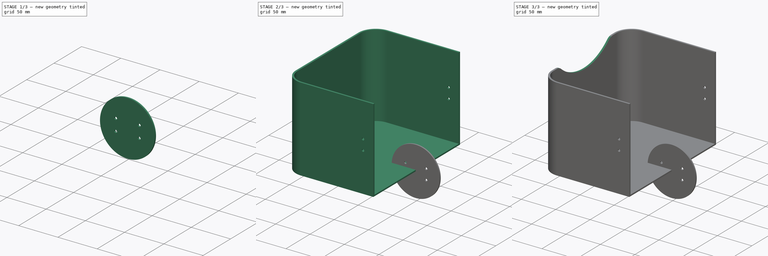
[diagram: build sequence overview — one tinted view per stage of 3, left to right]
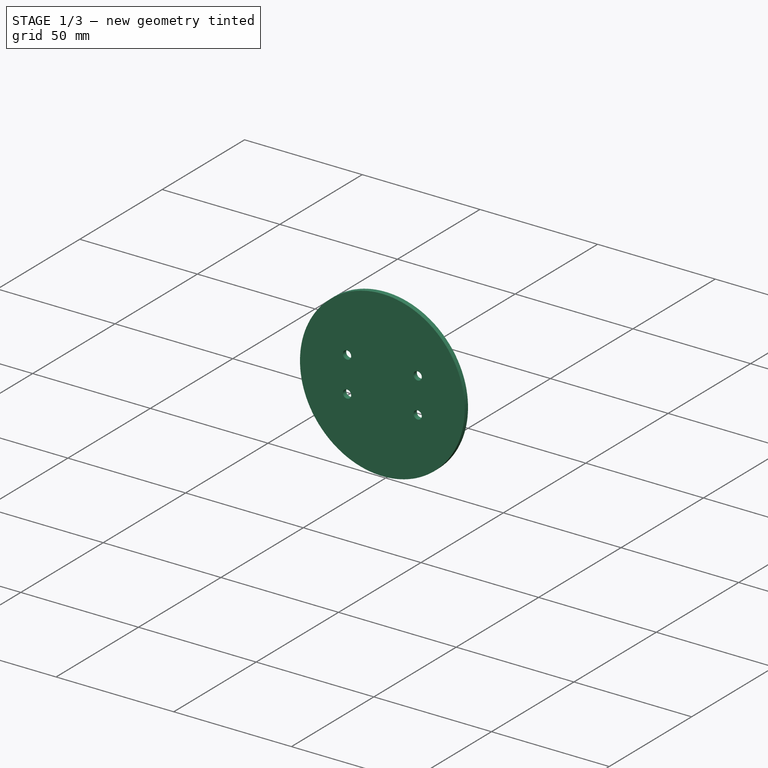
[diagram: stage 1 of 3 — iso view after this stage's code; geometry added in this stage tinted green]
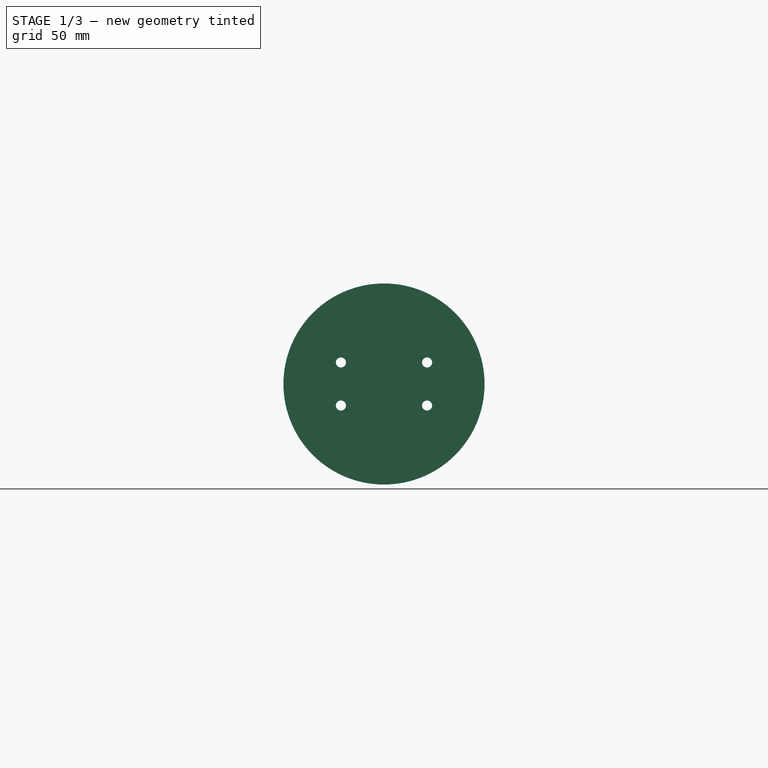
[diagram: stage 1 of 3 — front view after this stage's code; geometry added in this stage tinted green]
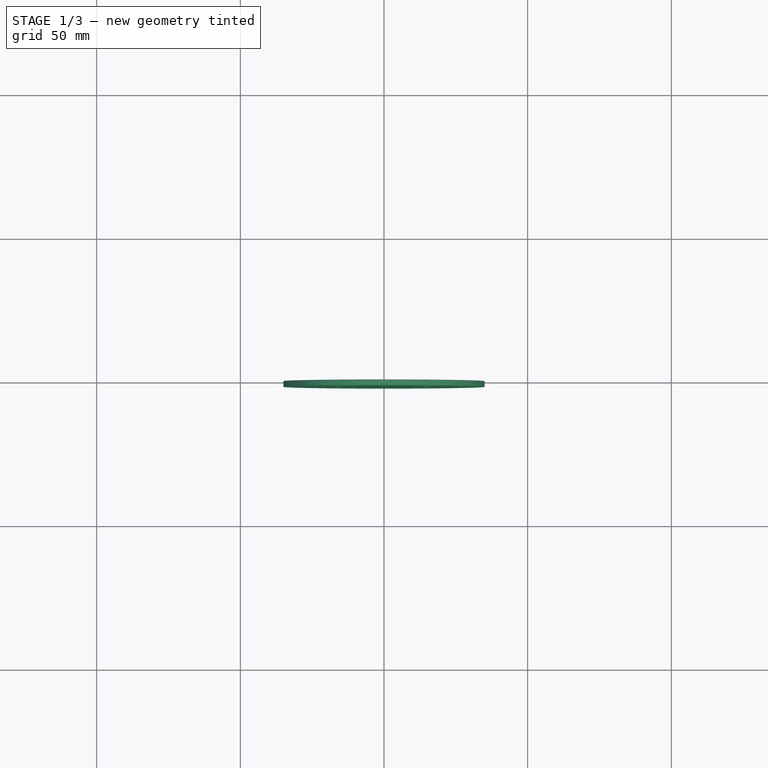
[diagram: stage 1 of 3 — top view after this stage's code; geometry added in this stage tinted green]
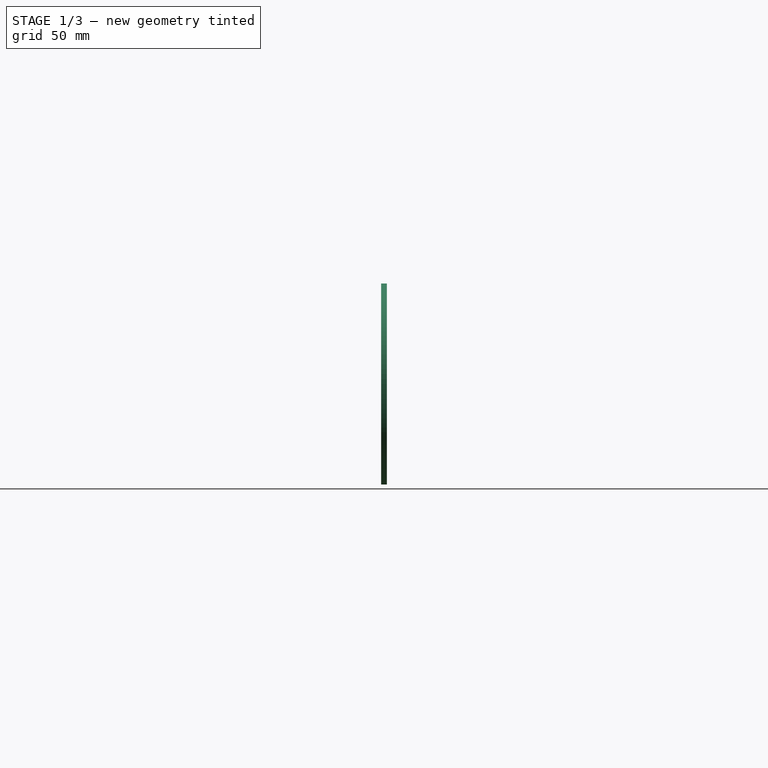
[diagram: stage 1 of 3 — right view after this stage's code; geometry added in this stage tinted green]
FCSTD DOCUMENT  (FreeCAD 0.19R22756 (Git))
Label: box
License: All rights reserved
LicenseURL: http://en.wikipedia.org/wiki/All_rights_reserved
objects: Sketcher::SketchObject×6, PartDesign::Pad×3, PartDesign::Pocket×3, PartDesign::Body×2, PartDesign::Fillet×1
note: 22 computed .brp shape members not serialized (recipe doc carries the construction recipe); baked Part::Feature solids carry a one-line shape summary decoded from their .brp

FEATURE [Sketcher::SketchObject] Sketch002
  MapMode = 5
  Placement = pos=(0,0,0) rot=(1,0,0;1.5708rad)
  Support = -> [XZ_Plane001]
  sketch-geometry (1):
    g0: Circle CenterX=0 CenterY=0 CenterZ=0 NormalX=0 NormalY=0 NormalZ=1 AngleXU=0 Radius=35
  constraints (2):
    c: Diameter(g0) = 70
    c: Coincident(g0,g-1)
FEATURE [PartDesign::Pad] Pad002
  Direction = (1,1,1)
  Length = 2
  Length2 = 100
  Placement = pos=(0,0,0) rot=(1,0,0;1.5708rad)
  Profile = -> Sketch002
  Type = 0
FEATURE [PartDesign::Body] Body
  Group = -> [Sketch,Pad,Sketch001,Pad001,Sketch004,Pocket001,Sketch006,Pocket002,Fillet]
  Origin = -> Origin
  Tip = -> Fillet
FEATURE [Sketcher::SketchObject] Sketch003
  MapMode = 5
  Placement = pos=(0,-2,0) rot=(1,0,0;1.5708rad)
  Support = -> [Pad002]
  expr: Constraints[3] = Constraints[0]
  expr: Constraints[4] = Constraints[0]
  expr: Constraints[5] = Constraints[0]
  expr: Constraints[6] = -Constraints[2]
  expr: Constraints[11] = -Constraints[1]
  sketch-geometry (4):
    g0: Circle CenterX=-15 CenterY=7.5 CenterZ=0 NormalX=0 NormalY=0 NormalZ=1 AngleXU=0 Radius=1.75
    g1: Circle CenterX=-15 CenterY=-7.5 CenterZ=0 NormalX=0 NormalY=0 NormalZ=1 AngleXU=0 Radius=1.75
    g2: Circle CenterX=15 CenterY=-7.5 CenterZ=0 NormalX=0 NormalY=0 NormalZ=1 AngleXU=0 Radius=1.75
    g3: Circle CenterX=15 CenterY=7.5 CenterZ=0 NormalX=0 NormalY=0 NormalZ=1 AngleXU=0 Radius=1.75
  constraints (12):
    c: Diameter(g0) = 3.5
    c: DistanceX(g-2,g0) = -15
    c: DistanceY(g-1,g0) = 7.5
    c: Diameter(g1) = 3.5
    c: Diameter(g3) = 3.5
    c: Diameter(g2) = 3.5
    c: DistanceY(g-1,g1) = -7.5
    c: Horizontal(g2,g1)
    c: Vertical(g3,g2)
    c: Vertical(g1,g0)
    c: Horizontal(g3,g0)
    c: DistanceX(g-2,g3) = 15
FEATURE [PartDesign::Pocket] Pocket
  BaseFeature = -> Pad002
  Length = 5
  Length2 = 100
  Placement = pos=(0,0,0) rot=(1,0,0;1.5708rad)
  Profile = -> Sketch003
  Type = 1
FEATURE [PartDesign::Body] Body001  label="connector"
  Group = -> [Sketch002,Pad002,Sketch003,Pocket]
  Origin = -> Origin001
  Tip = -> Pocket
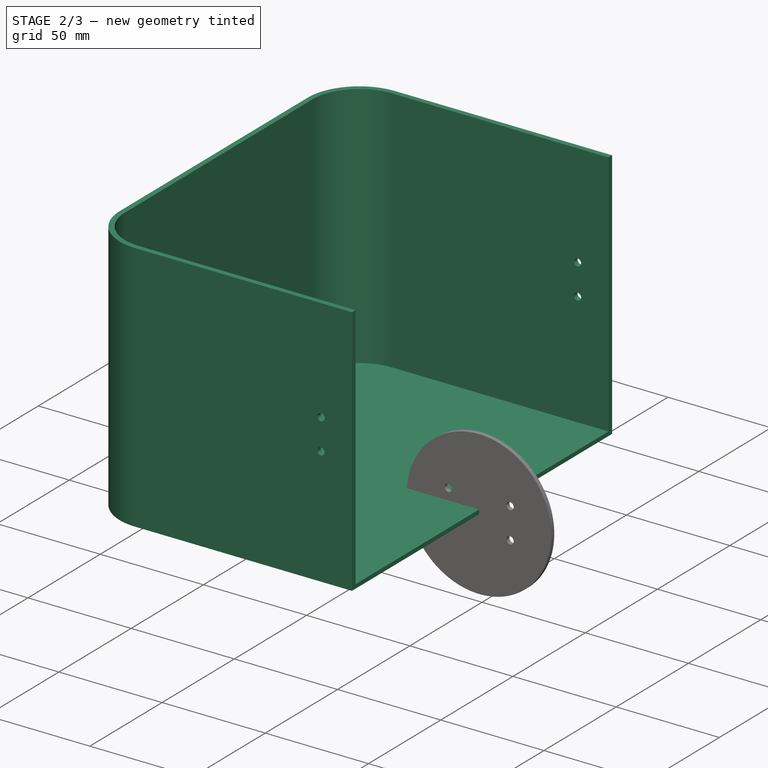
[diagram: stage 2 of 3 — iso view after this stage's code; geometry added in this stage tinted green]
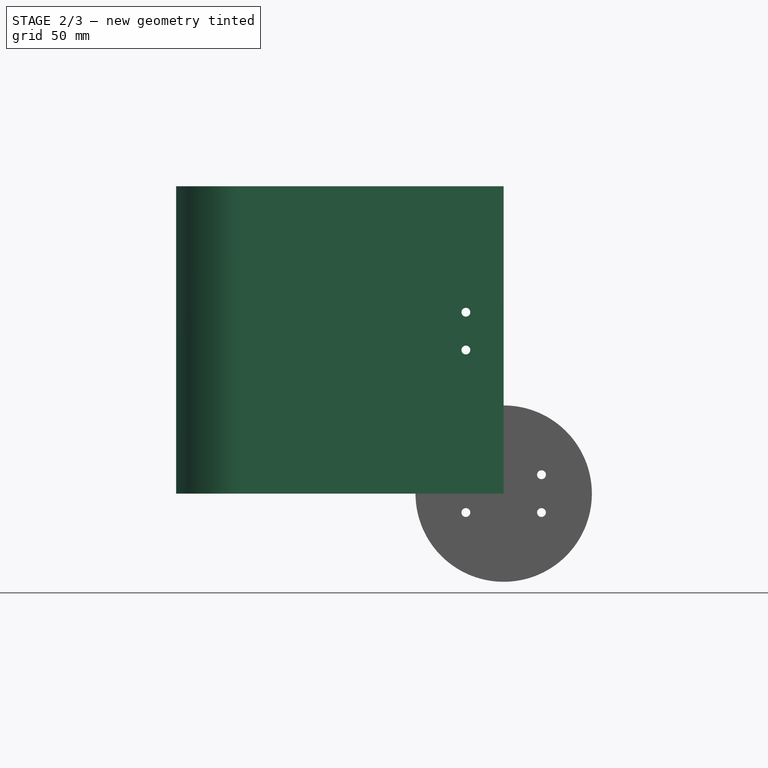
[diagram: stage 2 of 3 — front view after this stage's code; geometry added in this stage tinted green]
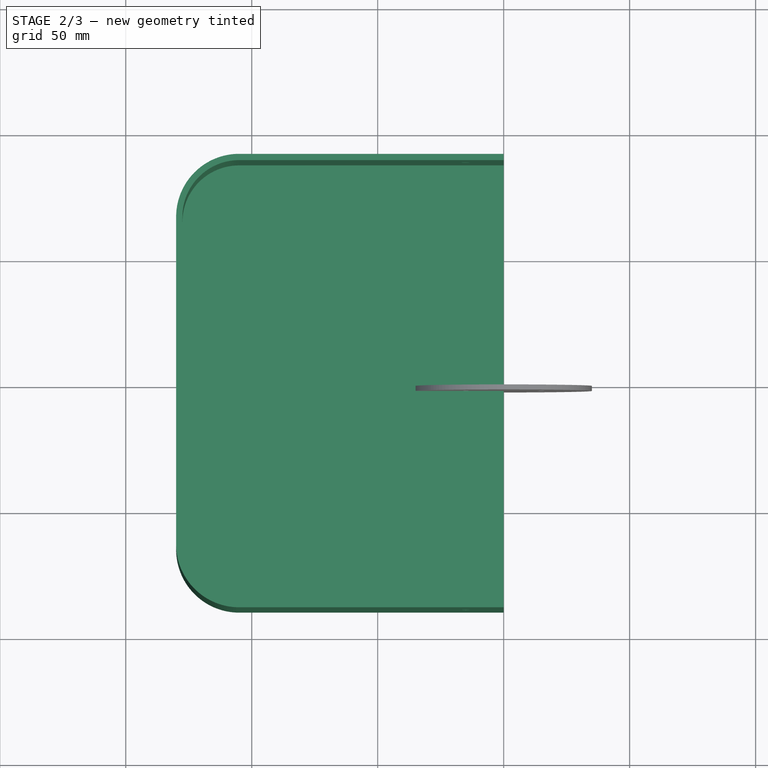
[diagram: stage 2 of 3 — top view after this stage's code; geometry added in this stage tinted green]
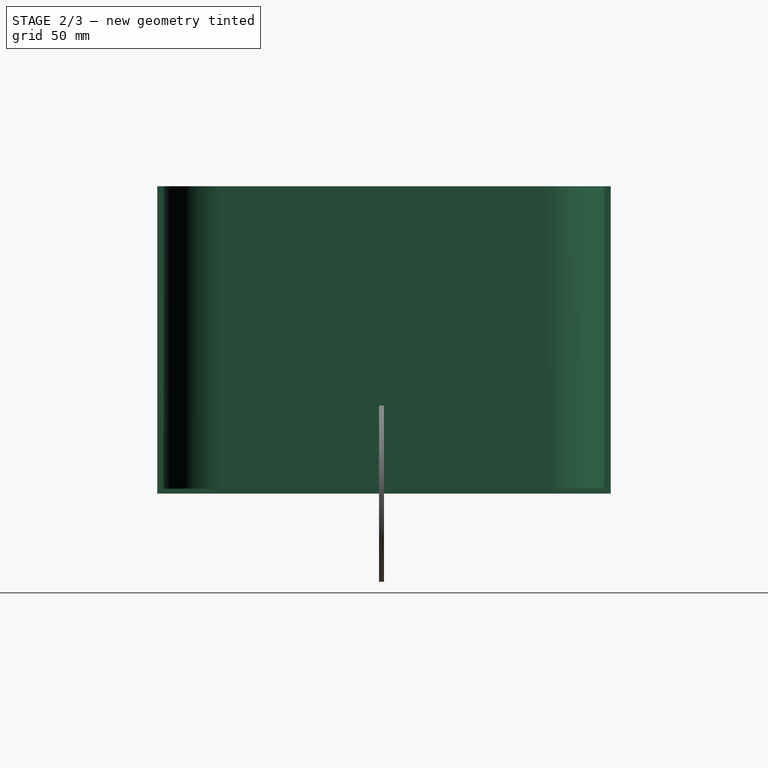
[diagram: stage 2 of 3 — right view after this stage's code; geometry added in this stage tinted green]
FEATURE [Sketcher::SketchObject] Sketch
  MapMode = 5
  Support = -> [XY_Plane]
  expr: Constraints[12] = Constraints[11] / 2
  expr: Constraints[15] = Constraints[14]
  sketch-geometry (6):
    g0: LineSegment StartX=0 StartY=90 StartZ=0 EndX=-105 EndY=90 EndZ=0
    g1: LineSegment StartX=-130 StartY=65 StartZ=0 EndX=-130 EndY=-65 EndZ=0
    g2: LineSegment StartX=-105 StartY=-90 StartZ=0 EndX=0 EndY=-90 EndZ=0
    g3: LineSegment StartX=0 StartY=90 StartZ=0 EndX=0 EndY=-90 EndZ=0
    g4: ArcOfCircle CenterX=-105 CenterY=65 CenterZ=0 NormalX=0 NormalY=0 NormalZ=1 AngleXU=0 Radius=25 StartAngle=1.5708 EndAngle=3.14159
    g5: ArcOfCircle CenterX=-105 CenterY=-65 CenterZ=0 NormalX=0 NormalY=0 NormalZ=1 AngleXU=0 Radius=25 StartAngle=3.14159 EndAngle=4.71239
  constraints (16):
    c: PointOnObject(g0,g-2)
    c: Horizontal(g0)
    c: Vertical(g1)
    c: PointOnObject(g2,g-2)
    c: Horizontal(g2)
    c: Coincident(g3,g0)
    c: Coincident(g3,g2)
    c: Tangent(g4,g1) = -1.5708
    c: Tangent(g0,g4) = -1.5708
    c: Tangent(g5,g1) = -1.5708
    c: Tangent(g5,g2) = -1.5708
    c: Distance(g0,g2) = 180
    c: DistanceY(g-1,g0) = 90
    c: Distance(g1,g3) = 130
    c: Radius(g4) = 25
    c: Radius(g5) = 25
FEATURE [PartDesign::Pad] Pad
  Direction = (1,1,1)
  Length = 2
  Length2 = 100
  Profile = -> Sketch
  Type = 0
FEATURE [Sketcher::SketchObject] Sketch001
  ExternalGeometry = -> [Pad]
  MapMode = 5
  Placement = pos=(0,0,2) rot=(0,0,1;0rad)
  Support = -> [Pad]
  sketch-geometry (12):
    g0: LineSegment StartX=0 StartY=90 StartZ=0 EndX=0 EndY=87.5 EndZ=0
    g1: LineSegment StartX=0 StartY=87.5 StartZ=0 EndX=-105 EndY=87.5 EndZ=0
    g2: LineSegment StartX=0 StartY=-90 StartZ=0 EndX=0 EndY=-87.5 EndZ=0
    g3: LineSegment StartX=0 StartY=-87.5 StartZ=0 EndX=-105 EndY=-87.5 EndZ=0
    g4: LineSegment StartX=-127.5 StartY=65 StartZ=0 EndX=-127.5 EndY=-65 EndZ=0
    g5: ArcOfCircle CenterX=-105 CenterY=65 CenterZ=0 NormalX=0 NormalY=0 NormalZ=1 AngleXU=0 Radius=22.5 StartAngle=1.5708 EndAngle=3.14159
    g6: ArcOfCircle CenterX=-105 CenterY=-65 CenterZ=0 NormalX=0 NormalY=0 NormalZ=1 AngleXU=0 Radius=22.5 StartAngle=3.14159 EndAngle=4.71239
    g7: LineSegment StartX=0 StartY=90 StartZ=0 EndX=-105 EndY=90 EndZ=0
    g8: LineSegment StartX=0 StartY=-90 StartZ=0 EndX=-105 EndY=-90 EndZ=0
    g9: LineSegment StartX=-130 StartY=65 StartZ=0 EndX=-130 EndY=-65 EndZ=0
    g10: ArcOfCircle CenterX=-105 CenterY=65 CenterZ=0 NormalX=0 NormalY=0 NormalZ=1 AngleXU=0 Radius=25 StartAngle=1.5708 EndAngle=3.14159
    g11: ArcOfCircle CenterX=-105 CenterY=-65 CenterZ=0 NormalX=0 NormalY=0 NormalZ=1 AngleXU=0 Radius=25 StartAngle=3.14159 EndAngle=4.71239
  constraints (28):
    c: Coincident(g0,g-3)
    c: PointOnObject(g0,g-2)
    c: Coincident(g1,g0)
    c: Horizontal(g1)
    c: Coincident(g2,g-7)
    c: PointOnObject(g2,g-2)
    c: Coincident(g3,g2)
    c: Horizontal(g3)
    c: Vertical(g4)
    c: Coincident(g5,g-4)
    c: Tangent(g5,g4) = -1.5708
    c: Tangent(g5,g1) = -1.5708
    c: Coincident(g6,g-6)
    c: Tangent(g6,g4) = -1.5708
    c: Tangent(g6,g3) = 1.5708
    c: Distance(g1,g-3) = 2.5
    c: Coincident(g7,g0)
    c: Coincident(g7,g-4)
    c: Coincident(g8,g2)
    c: Coincident(g8,g-7)
    c: Coincident(g9,g-5)
    c: Coincident(g9,g-6)
    c: Coincident(g10,g5)
    c: Coincident(g10,g9)
    c: Coincident(g10,g7)
    c: Coincident(g11,g6)
    c: Coincident(g11,g8)
    c: Coincident(g11,g9)
FEATURE [PartDesign::Pad] Pad001
  BaseFeature = -> Pad
  Direction = (1,1,1)
  Length = 120
  Length2 = 100
  Profile = -> Sketch001
  Type = 0
FEATURE [Sketcher::SketchObject] Sketch004
  ExternalGeometry = -> [Pad001]
  MapMode = 5
  Placement = pos=(1.26e-14,-90,0) rot=(1,0,0;1.5708rad)
  Support = -> [Pad001]
  expr: Constraints[1] = Constraints[0]
  sketch-geometry (2):
    g0: Circle CenterX=-15 CenterY=72 CenterZ=0 NormalX=0 NormalY=0 NormalZ=1 AngleXU=0 Radius=1.75
    g1: Circle CenterX=-15 CenterY=57 CenterZ=0 NormalX=0 NormalY=0 NormalZ=1 AngleXU=0 Radius=1.75
  constraints (6):
    c: Diameter(g0) = 3.5
    c: Diameter(g1) = 3.5
    c: Vertical(g0,g1)
    c: DistanceY(g1,g0) = 15
    c: DistanceX(g-2,g0) = -15
    c: Distance(g0,g-3) = 50
FEATURE [PartDesign::Pocket] Pocket001
  BaseFeature = -> Pad001
  Length = 5
  Length2 = 100
  Profile = -> Sketch004
  Type = 1
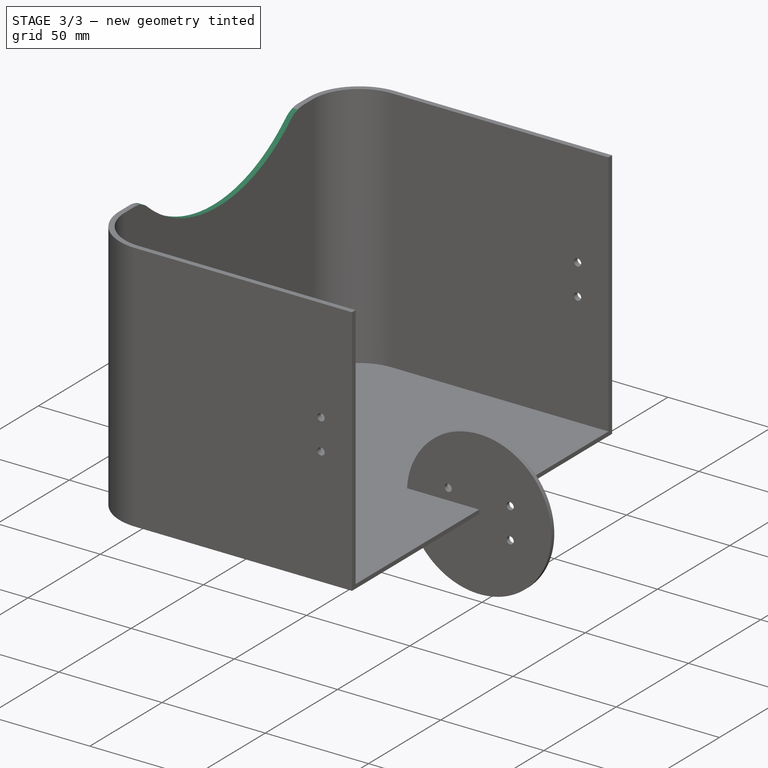
[diagram: stage 3 of 3 — iso view after this stage's code; geometry added in this stage tinted green]
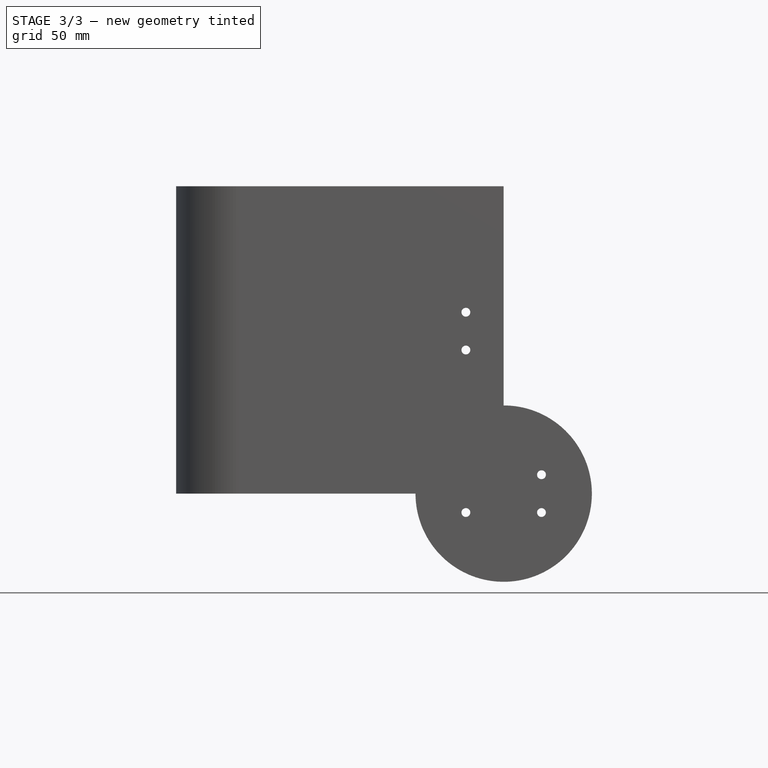
[diagram: stage 3 of 3 — front view after this stage's code; geometry added in this stage tinted green]
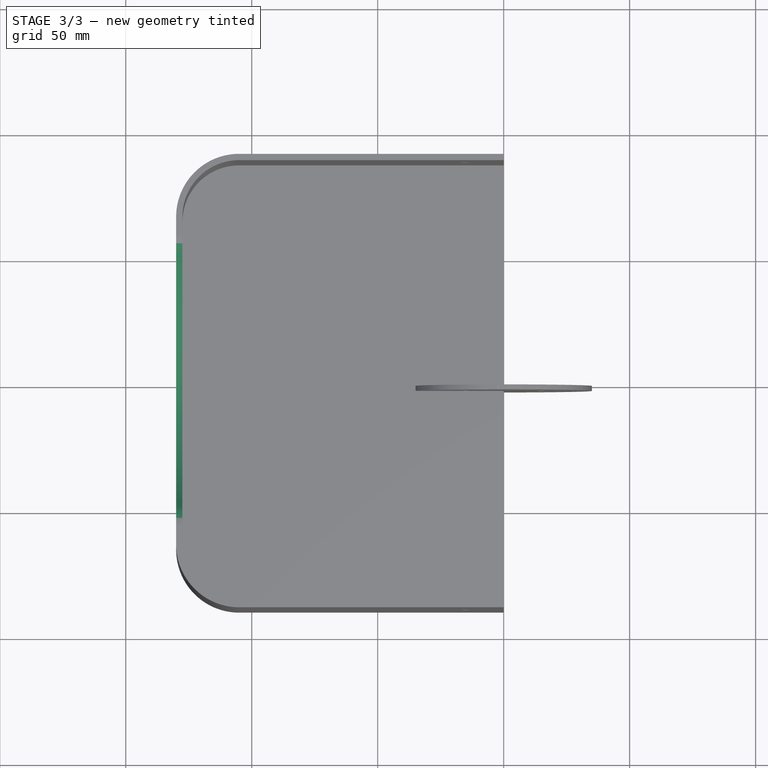
[diagram: stage 3 of 3 — top view after this stage's code; geometry added in this stage tinted green]
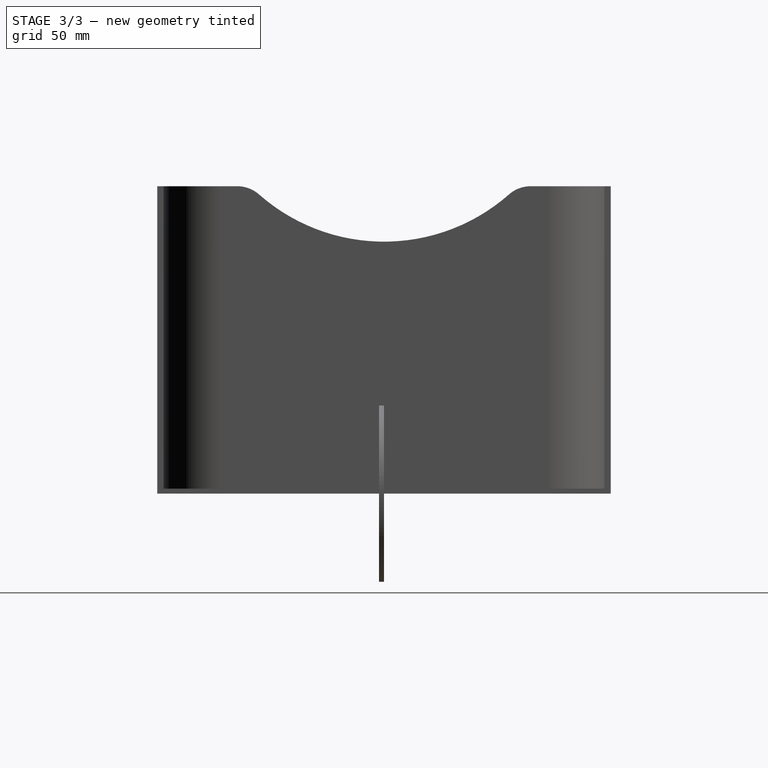
[diagram: stage 3 of 3 — right view after this stage's code; geometry added in this stage tinted green]
FEATURE [Sketcher::SketchObject] Sketch006
  MapMode = 5
  Placement = pos=(-130,0,0) rot=(0.57735,-0.57735,-0.57735;2.0944rad)
  Support = -> [Pocket001]
  sketch-geometry (1):
    g0: Circle CenterX=0 CenterY=175 CenterZ=0 NormalX=0 NormalY=0 NormalZ=1 AngleXU=0 Radius=75
  constraints (3):
    c: PointOnObject(g0,g-2)
    c: Radius(g0) = 75
    c: DistanceY(g-1,g0) = 175
FEATURE [PartDesign::Pocket] Pocket002
  BaseFeature = -> Pocket001
  Length = 5
  Length2 = 100
  Profile = -> Sketch006
  Type = 1
FEATURE [PartDesign::Fillet] Fillet
  Base = -> Pocket002 [Edge39,Edge63]
  BaseFeature = -> Pocket002
  Radius = 13
  SupportTransform = false
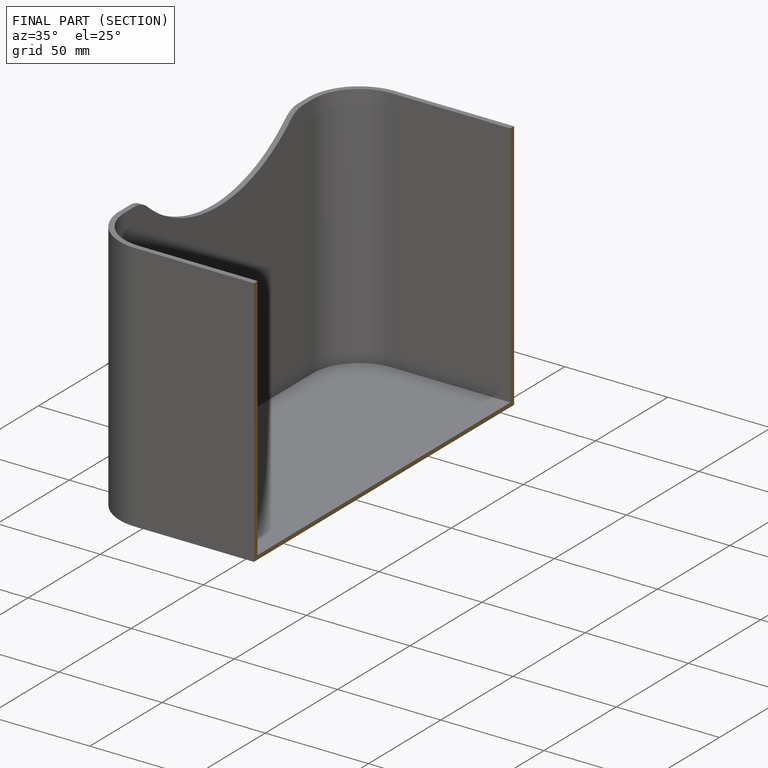
[diagram: finished part — half-section view (interior)]
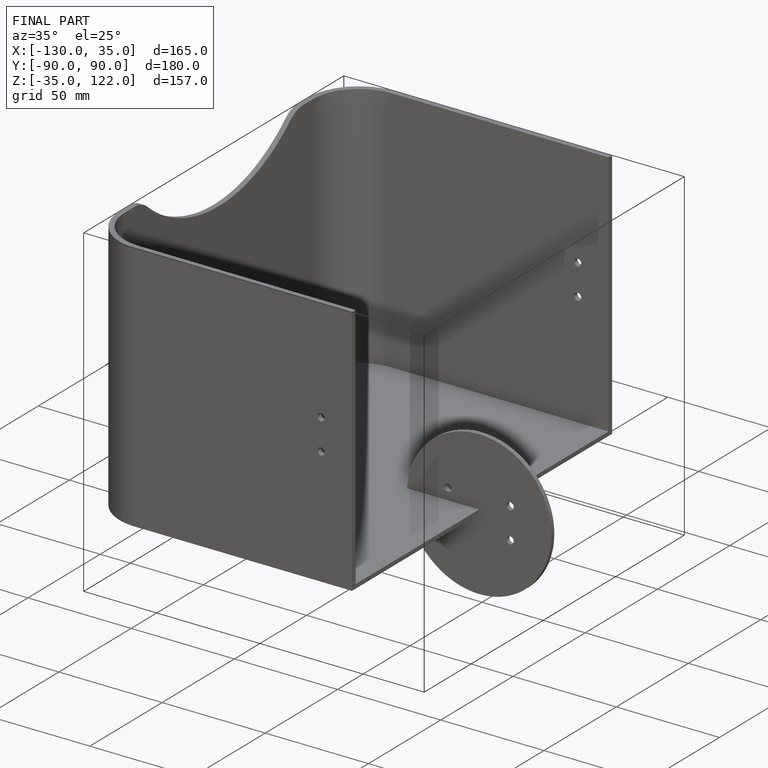
[diagram: finished part — iso view with bounding-box wireframe]
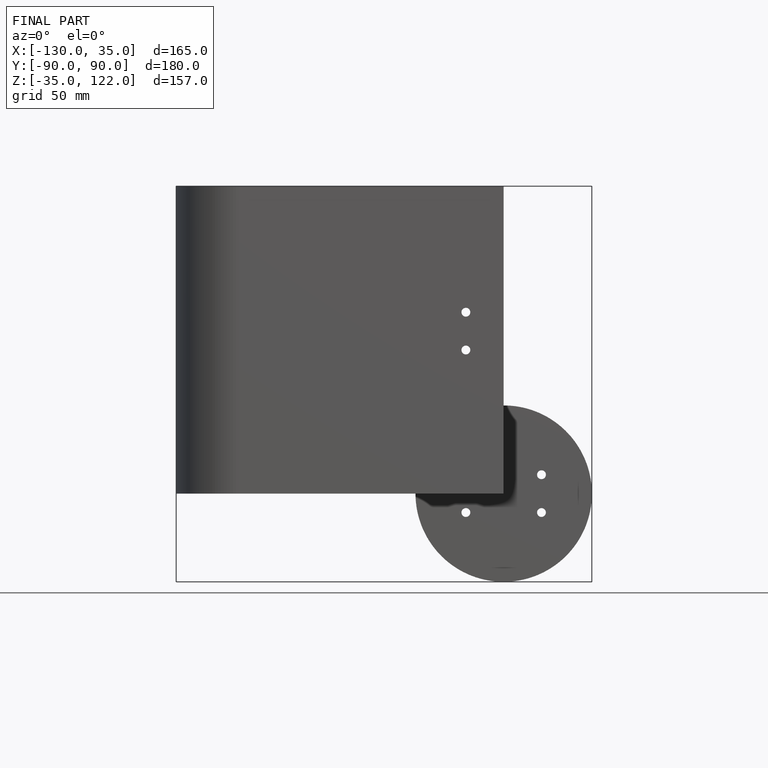
[diagram: finished part — front view with bounding-box wireframe]
